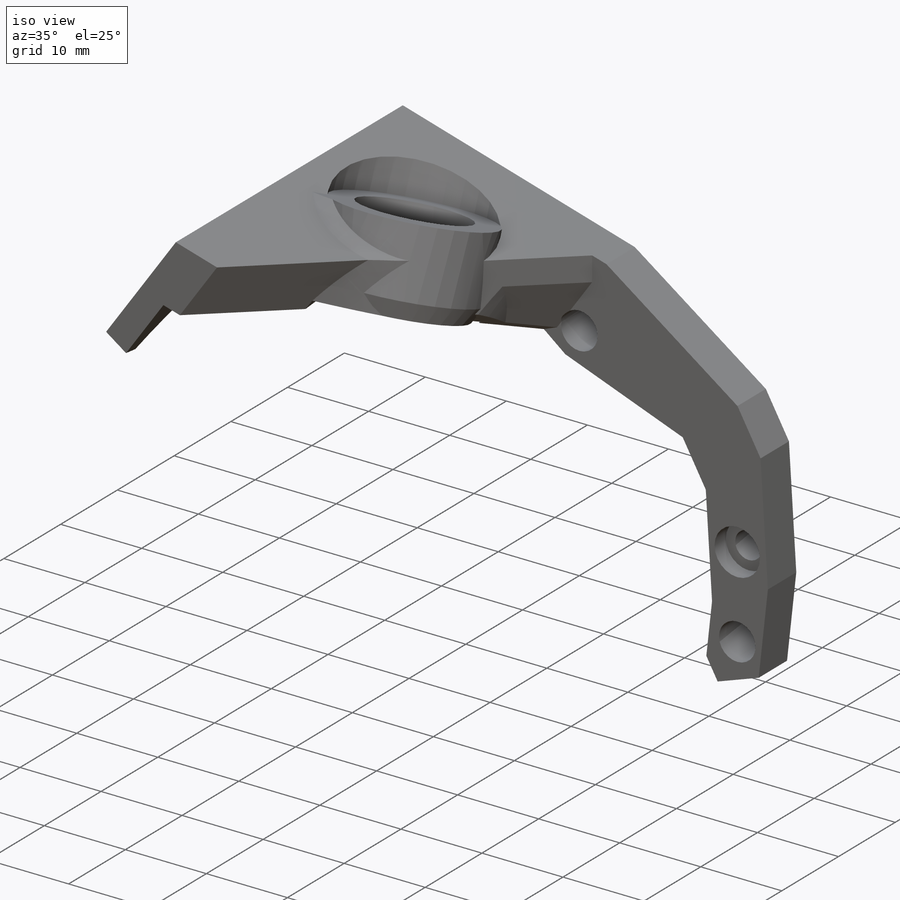
[diagram: iso view]
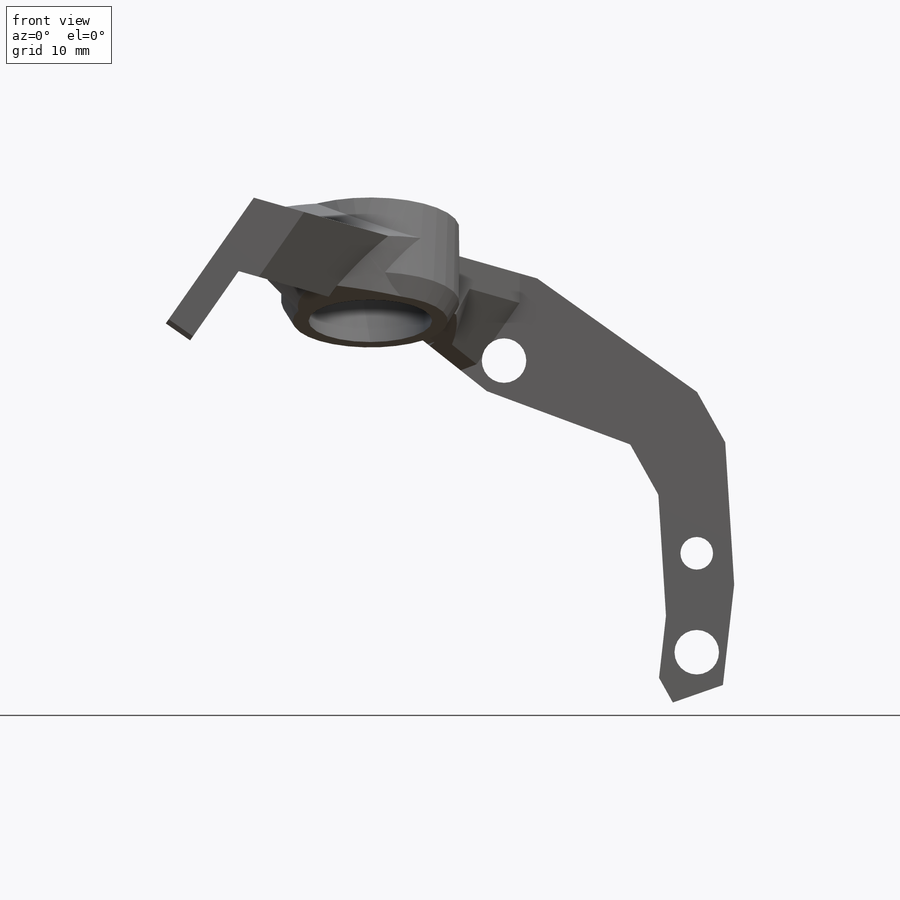
[diagram: front view]
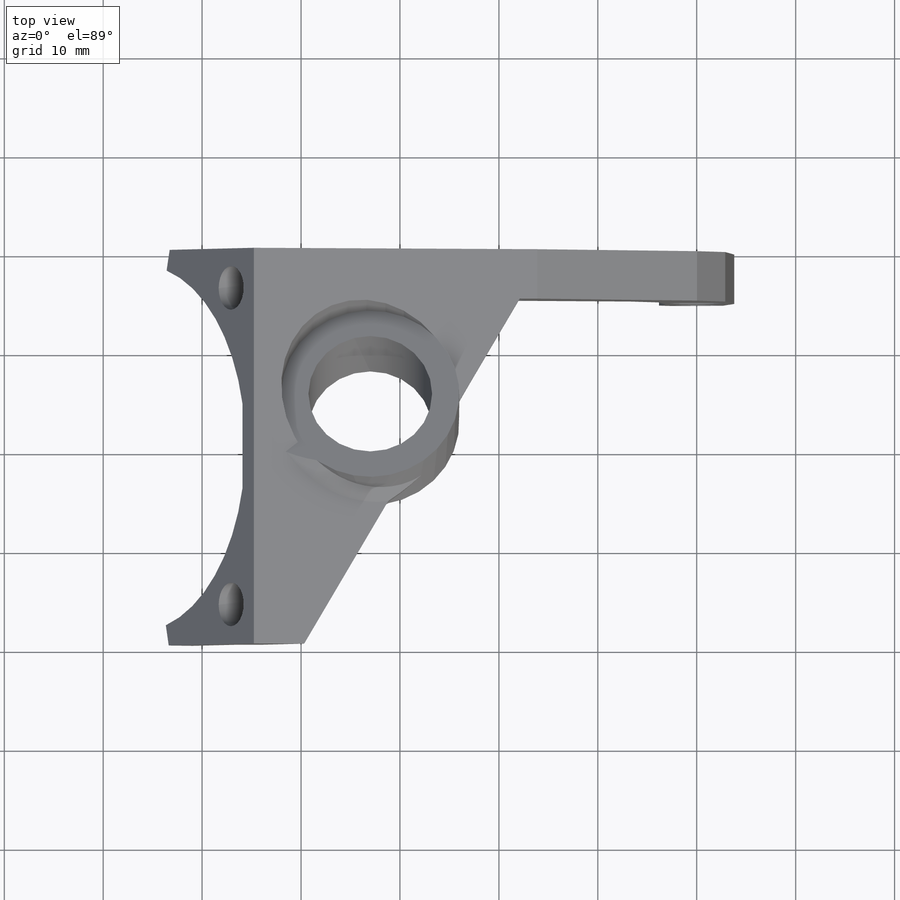
[diagram: top view]
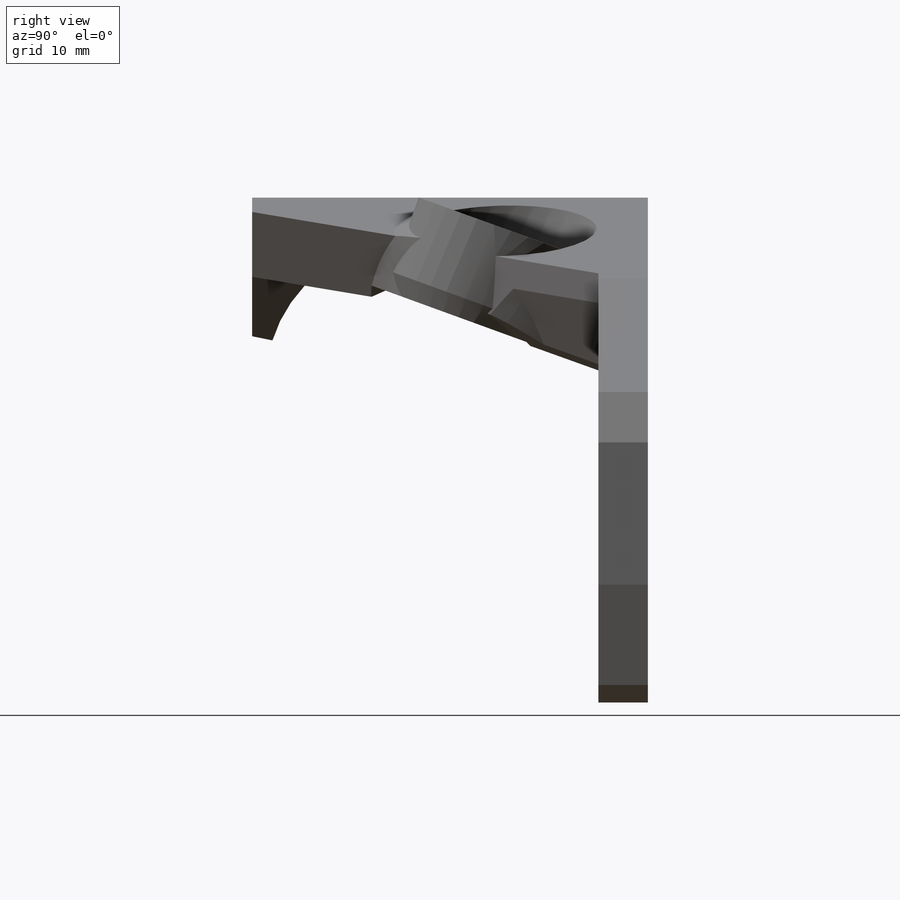
[diagram: right view]
SOLIDWORKS PART (.sldprt)
format: sldprt  version: not decoded by parser v0  size: 568,320 bytes
history: native  units: mm
features: sketch x11, cut_extrude x8, chamfer x8, plane x4, extrude x3, material x1 (+13 scaffold rows collapsed)
feature tree (48):
  scaffold x13  (default folders/planes/origin — collapsed)
  material  "ABS"
  plane  "Ebene vorne"
  plane  "Ebene oben"
  plane  "Ebene rechts"
  sketch  "Skizze1"  dims[c1.D2=3.3mm c1.D3=36.0mm c1.D51=4.5mm c1.D1=10.0mm c1.D4=26.0mm c1.D5=3.0mm c1.D6=19.48mm c1.D7=19.48mm c1.D8=3.0mm c1.D9=10.0mm c2.D9=6.4deg c2.D10=3.58mm c2.D11=10.0mm c3.D11=3.6deg c3.D12=8.713mm c3.D13=11.58mm c3.D14=16.3mm c3.D15=19.77mm c3.D16=19.48mm c4.D16=~9.593963deg c5.D16=32.136mm c5.D17=11.146mm c5.D18=~27.54888mm c6.D18=29.1deg c6.D19=11.613mm c6.D20=11.717mm c6.D21=~2.487349mm c7.D21=48.6deg c7.D22=~3.187352mm c8.D22=69.1deg c8.D23=~27.54888mm c9.D23=90.5deg c9.D24=3.0mm c9.D25=3.5mm c9.D26=3.5mm c9.D27=~2.172343mm c10.D27=100.0deg c10.D28=~0.708384mm c11.D28=~144.33635deg c12.D28=~16.167241mm c13.D28=15.0deg c13.D29=3.0mm c13.D30=3.0mm c13.D31=41.0mm c13.D32=22.0mm c13.D33=1.0mm c13.D34=13.0mm c13.D35=40.0mm c13.D36=8.0mm c13.D37=3.0mm c13.D38=2.0mm c13.D39=41.0mm c14.D39=35.0deg c14.D40=7.0mm c14.D41=58.0mm c14.D42=18.0mm c14.D43=20.0mm c14.D44=2.0mm c14.D45=4.0mm c14.D46=8.0mm c14.D24=~16.167241mm c15.D24=15.0deg c15.D28=3.5mm c15.D47=2.0mm c15.D48=10.0mm c15.D49=~3.635556mm c16.D49=25.0deg c16.D50=10.0mm c16.D51=~3.546466mm]
  extrude  "Aufsatz-Linear austragen1"  Depth=40mm
  sketch  "Skizze3"  dims[c1.D1=20.0mm c1.D2=5.0mm c1.D3=~63.101102mm c2.D3=60.0deg c2.D1=20.0mm c2.D4=5.0mm c2.D5=5.0mm]
  cut_extrude  "Schnitt-Linear austragen1"  Depth=40mm
  sketch  "Skizze4"  dims[D1=4.4mm D2=4.0mm D3=4.0mm D4=4.0mm D5=32.0mm]
  cut_extrude  "Schnitt-Linear austragen2"  Depth=5mm
  plane  "Ebene1"
  sketch  "Skizze5"  dims[D1=12.5mm D2=18.0mm D3=2.0mm]
  extrude  "Aufsatz-Linear austragen2"  Depth=10mm
  sketch  "Skizze6"
  cut_extrude  "Schnitt-Linear austragen3"  Depth=15mm
  sketch  "Skizze7"
  cut_extrude  "Schnitt-Linear austragen4"  Depth=15mm
  sketch  "Skizze8"
  cut_extrude  "Schnitt-Linear austragen5"  Depth=15mm
  chamfer  "Fase9"  Distance=1mm Angle=45deg
  sketch  "Skizze10"  dims[D1=0.0mm D2=0.0mm]
  cut_extrude  "Schnitt-Linear austragen7"  [1 undecoded]
  sketch  "Skizze12"  dims[D1=5.6mm]
  cut_extrude  "Schnitt-Linear austragen8"  Depth=3mm
  sketch  "Skizze13"  dims[D6=37.0mm D1=2.0mm D2=2.0mm D3=2.0mm D4=5.0mm D5=5.0mm]
  extrude  "Aufsatz-Linear austragen3"  Depth=3mm
  sketch  "Skizze14"  dims[D6=37.0mm D1=2.0mm D2=2.0mm D3=2.0mm D4=5.0mm D5=5.0mm]
  cut_extrude  "Schnitt-Linear austragen9"  Depth=3mm
  chamfer  "Fase12"  Distance=6mm Angle=30deg
  chamfer  "Fase13"  Distance=1.5mm Angle=30deg
  chamfer  "Fase14"  Distance=3mm Angle=30deg
  chamfer  "Fase15"  Distance=2mm Angle=30deg
  chamfer  "Fase16"  Distance=2mm Angle=30deg
  chamfer  "Fase17"  Distance=2mm Angle=30deg
  chamfer  "Fase18"  Distance=2mm Angle=30deg
decode coverage: 26 of 30 modeling features carry decoded parameters
note: ~ marks probable driven/reference dimensions
note: 1 parameter value undecoded
note: suppression state not decoded; provenance and decode notes live in map.json
